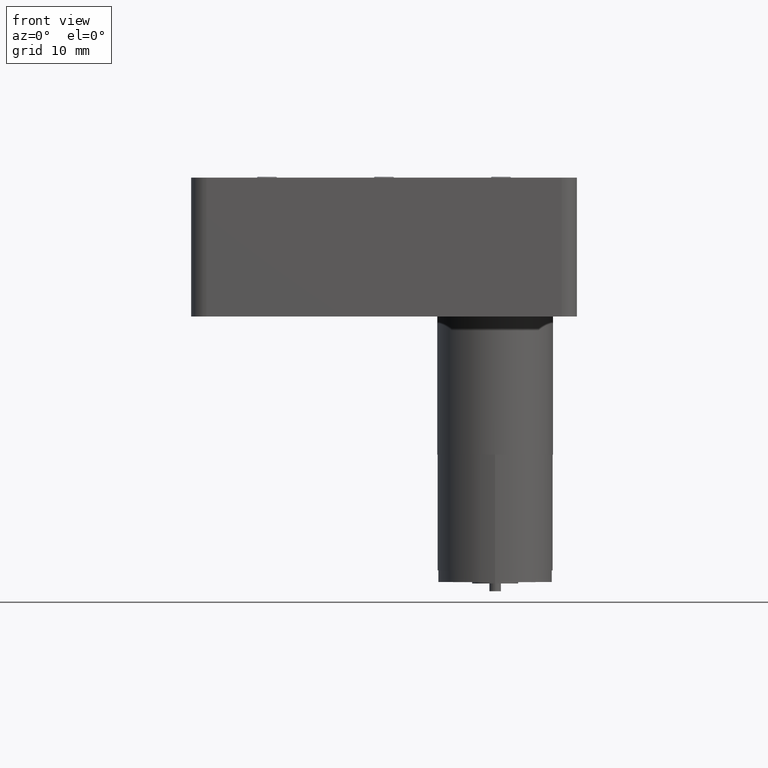
[diagram: clean part render]
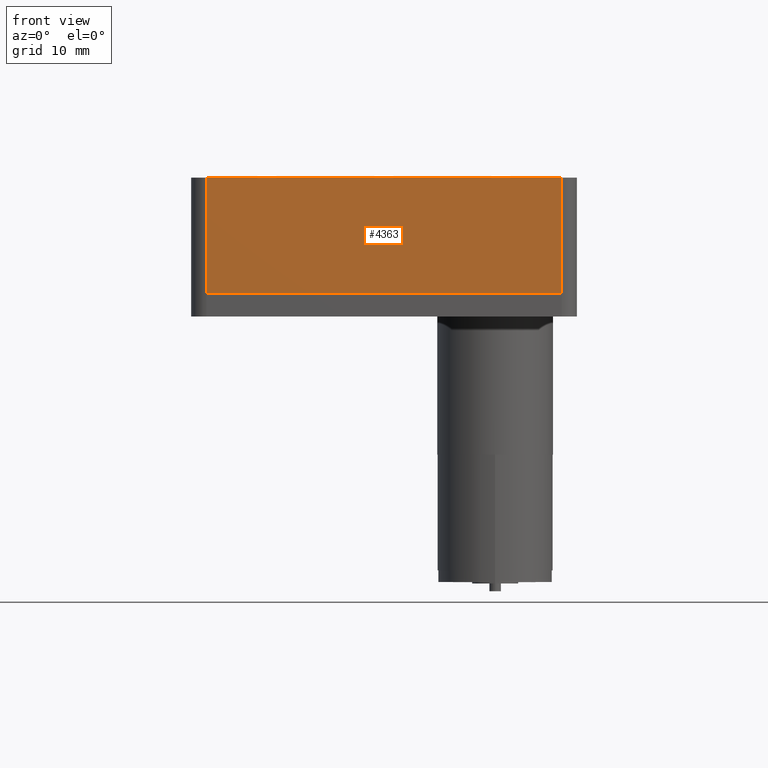
[diagram: same view with one face highlighted and labeled with its STEP entity id]
A machine part, front view. The second image highlights one B-rep face of the part: STEP entity #4363.
In plain terms, the highlighted planar face has unit normal (0, 1, 0).
Its self-contained STEP definition (entity closure, byte-faithful):
#121 = DIRECTION ( 'NONE',  ( 0.0000000000000000000, -0.0000000000000000000, 1.000000000000000000 ) ) ;
#283 = LINE ( 'NONE', #449, #2430 ) ;
#449 = CARTESIAN_POINT ( 'NONE',  ( 0.0000000000000000000, 0.0000000000000000000, 15.00000000000000000 ) ) ;
#1474 = AXIS2_PLACEMENT_3D ( 'NONE', #9810, #4926, #121 ) ;
#1742 = CARTESIAN_POINT ( 'NONE',  ( 48.00000000000000000, 0.0000000000000000000, 15.00000000000000000 ) ) ;
#2261 = CARTESIAN_POINT ( 'NONE',  ( 2.000000000000000000, 0.0000000000000000000, 0.0000000000000000000 ) ) ;
#2384 = VECTOR ( 'NONE', #9855, 1000.000000000000000 ) ;
#2430 = VECTOR ( 'NONE', #6938, 1000.000000000000000 ) ;
#2597 = LINE ( 'NONE', #5158, #6930 ) ;
#2770 = EDGE_CURVE ( 'NONE', #4670, #10131, #283, .T. ) ;
#3272 = PLANE ( 'NONE',  #1474 ) ;
#3282 = ORIENTED_EDGE ( 'NONE', *, *, #4817, .T. ) ;
#3518 = FACE_OUTER_BOUND ( 'NONE', #9687, .T. ) ;
#4038 = VERTEX_POINT ( 'NONE', #7604 ) ;
#4363 = ADVANCED_FACE ( 'NONE', ( #3518 ), #3272, .F. ) ;
#4629 = CARTESIAN_POINT ( 'NONE',  ( 2.000000000000000000, 0.0000000000000000000, 15.00000000000000000 ) ) ;
#4670 = VERTEX_POINT ( 'NONE', #6451 ) ;
#4727 = VECTOR ( 'NONE', #8646, 1000.000000000000000 ) ;
#4817 = EDGE_CURVE ( 'NONE', #4038, #10131, #6671, .T. ) ;
#4926 = DIRECTION ( 'NONE',  ( 0.0000000000000000000, 1.000000000000000000, 0.0000000000000000000 ) ) ;
#4968 = VERTEX_POINT ( 'NONE', #2261 ) ;
#5158 = CARTESIAN_POINT ( 'NONE',  ( 0.0000000000000000000, 0.0000000000000000000, 0.0000000000000000000 ) ) ;
#5231 = ORIENTED_EDGE ( 'NONE', *, *, #5869, .T. ) ;
#5469 = ORIENTED_EDGE ( 'NONE', *, *, #2770, .F. ) ;
#5869 = EDGE_CURVE ( 'NONE', #4968, #4038, #2597, .T. ) ;
#6451 = CARTESIAN_POINT ( 'NONE',  ( 2.000000000000000000, 0.0000000000000000000, 15.00000000000000000 ) ) ;
#6552 = CARTESIAN_POINT ( 'NONE',  ( 48.00000000000000000, 0.0000000000000000000, 15.00000000000000000 ) ) ;
#6671 = LINE ( 'NONE', #1742, #2384 ) ;
#6930 = VECTOR ( 'NONE', #7534, 1000.000000000000000 ) ;
#6938 = DIRECTION ( 'NONE',  ( 1.000000000000000000, 0.0000000000000000000, 0.0000000000000000000 ) ) ;
#7500 = ORIENTED_EDGE ( 'NONE', *, *, #8953, .T. ) ;
#7534 = DIRECTION ( 'NONE',  ( 1.000000000000000000, 0.0000000000000000000, 0.0000000000000000000 ) ) ;
#7604 = CARTESIAN_POINT ( 'NONE',  ( 48.00000000000000000, 0.0000000000000000000, 0.0000000000000000000 ) ) ;
#8646 = DIRECTION ( 'NONE',  ( 0.0000000000000000000, 0.0000000000000000000, -1.000000000000000000 ) ) ;
#8953 = EDGE_CURVE ( 'NONE', #4670, #4968, #9035, .T. ) ;
#9035 = LINE ( 'NONE', #4629, #4727 ) ;
#9687 = EDGE_LOOP ( 'NONE', ( #5231, #3282, #5469, #7500 ) ) ;
#9810 = CARTESIAN_POINT ( 'NONE',  ( 0.0000000000000000000, 0.0000000000000000000, 15.00000000000000000 ) ) ;
#9855 = DIRECTION ( 'NONE',  ( -0.0000000000000000000, -0.0000000000000000000, 1.000000000000000000 ) ) ;
#10131 = VERTEX_POINT ( 'NONE', #6552 ) ;